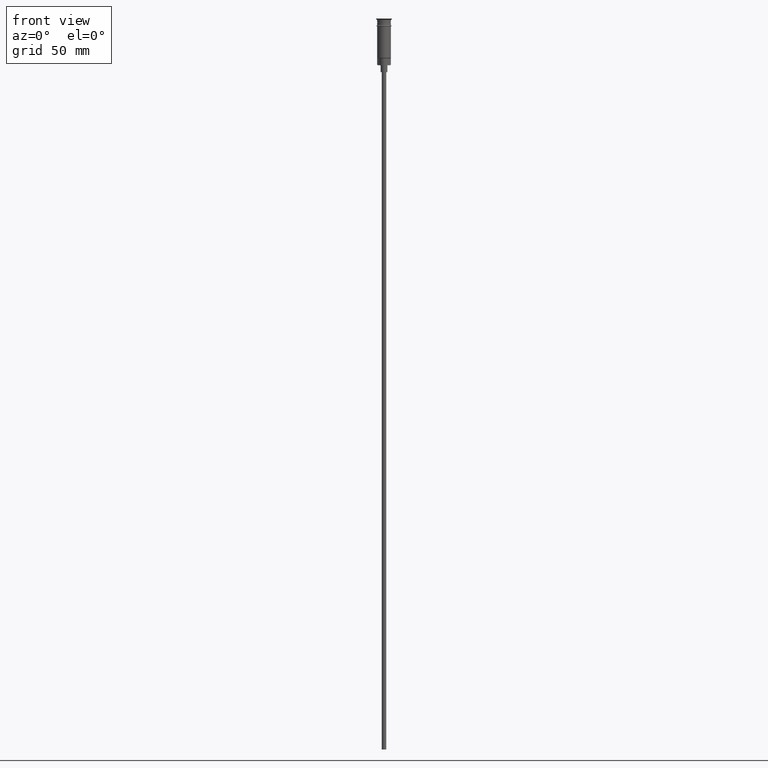
[diagram: clean part render]
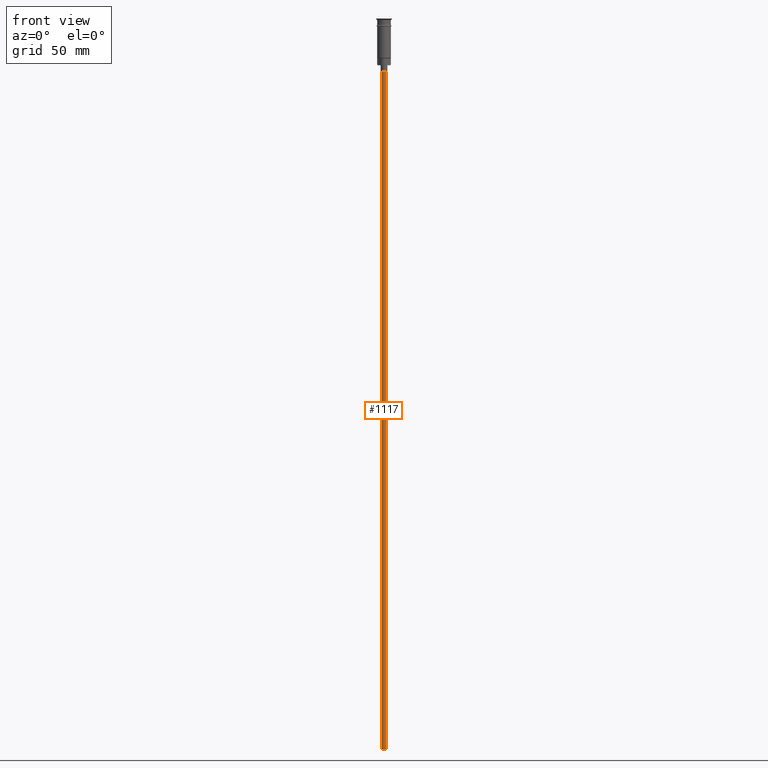
[diagram: same view with one face highlighted and labeled with its STEP entity id]
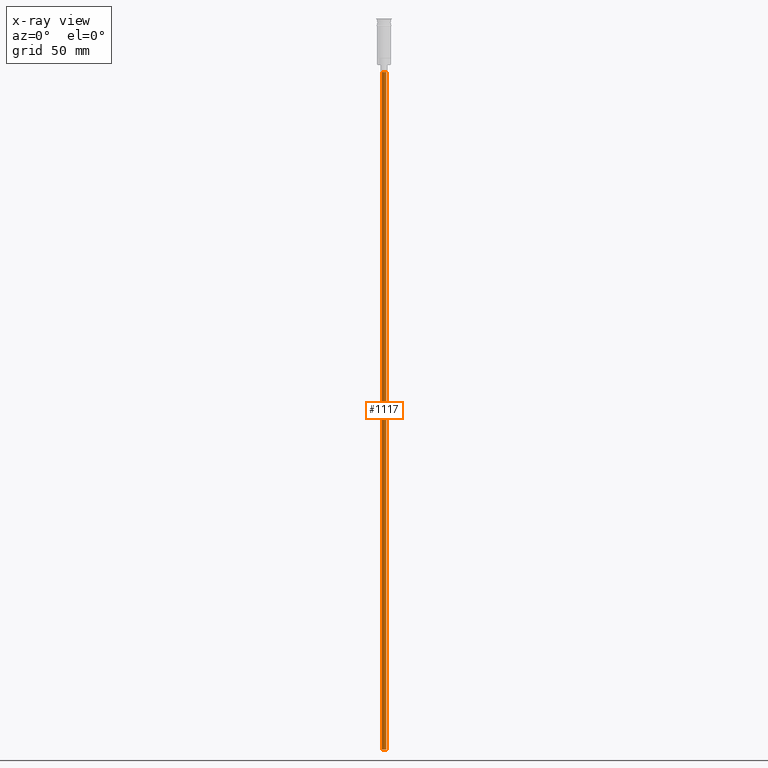
[diagram: x-ray of the same camera — body ghosted, the highlighted face saturated]
A machine part, front view. The second image highlights one B-rep face of the part: STEP entity #1117.
The next image is the same camera in x-ray: the body ghosted, the highlighted face saturated — about 0% of this face is hidden behind the body in this view.
In plain terms, the highlighted cylindrical surface (edge-blend (fillet) strip) has radius 1 mm, axis along (-0, -0, 1).
Its self-contained STEP definition (entity closure, byte-faithful):
#36 = VERTEX_POINT ( 'NONE', #1243 ) ;
#94 = EDGE_CURVE ( 'NONE', #1200, #822, #900, .T. ) ;
#113 = ORIENTED_EDGE ( 'NONE', *, *, #487, .F. ) ;
#152 = DIRECTION ( 'NONE',  ( 1.000000000000000000, 0.000000000000000000, 0.000000000000000000 ) ) ;
#214 = CARTESIAN_POINT ( 'NONE',  ( -0.9999999999999997780, 1.224646799147352961E-16, -320.5000000000000000 ) ) ;
#218 = CIRCLE ( 'NONE', #1506, 0.9999999999999997780 ) ;
#220 = ORIENTED_EDGE ( 'NONE', *, *, #1182, .F. ) ;
#299 = CARTESIAN_POINT ( 'NONE',  ( 0.000000000000000000, 0.000000000000000000, -320.5000000000000000 ) ) ;
#328 = EDGE_LOOP ( 'NONE', ( #220, #113, #651, #1048 ) ) ;
#399 = EDGE_CURVE ( 'NONE', #822, #36, #218, .T. ) ;
#409 = CARTESIAN_POINT ( 'NONE',  ( 0.000000000000000000, 0.000000000000000000, -23.50000000000000000 ) ) ;
#420 = DIRECTION ( 'NONE',  ( -0.000000000000000000, -0.000000000000000000, 1.000000000000000000 ) ) ;
#457 = CARTESIAN_POINT ( 'NONE',  ( 0.9999999999999997780, 0.000000000000000000, -320.5000000000000000 ) ) ;
#487 = EDGE_CURVE ( 'NONE', #1200, #534, #961, .T. ) ;
#516 = CARTESIAN_POINT ( 'NONE',  ( 0.9999999999999997780, 0.000000000000000000, -320.5000000000000000 ) ) ;
#534 = VERTEX_POINT ( 'NONE', #1242 ) ;
#651 = ORIENTED_EDGE ( 'NONE', *, *, #94, .T. ) ;
#696 = VECTOR ( 'NONE', #836, 1000.000000000000000 ) ;
#698 = CARTESIAN_POINT ( 'NONE',  ( 0.9999999999999997780, 0.000000000000000000, -23.50000000000000000 ) ) ;
#822 = VERTEX_POINT ( 'NONE', #698 ) ;
#836 = DIRECTION ( 'NONE',  ( -0.000000000000000000, -0.000000000000000000, 1.000000000000000000 ) ) ;
#864 = CARTESIAN_POINT ( 'NONE',  ( 0.000000000000000000, 0.000000000000000000, -320.5000000000000000 ) ) ;
#871 = DIRECTION ( 'NONE',  ( -0.000000000000000000, -0.000000000000000000, 1.000000000000000000 ) ) ;
#900 = LINE ( 'NONE', #516, #1526 ) ;
#915 = AXIS2_PLACEMENT_3D ( 'NONE', #864, #985, #1480 ) ;
#920 = AXIS2_PLACEMENT_3D ( 'NONE', #299, #420, #152 ) ;
#961 = CIRCLE ( 'NONE', #915, 0.9999999999999997780 ) ;
#985 = DIRECTION ( 'NONE',  ( 0.000000000000000000, 0.000000000000000000, -1.000000000000000000 ) ) ;
#1025 = FACE_OUTER_BOUND ( 'NONE', #328, .T. ) ;
#1048 = ORIENTED_EDGE ( 'NONE', *, *, #399, .T. ) ;
#1071 = LINE ( 'NONE', #214, #696 ) ;
#1117 = ADVANCED_FACE ( 'NONE', ( #1025 ), #1520, .T. ) ;
#1182 = EDGE_CURVE ( 'NONE', #534, #36, #1071, .T. ) ;
#1200 = VERTEX_POINT ( 'NONE', #457 ) ;
#1242 = CARTESIAN_POINT ( 'NONE',  ( -0.9999999999999997780, 1.224646799147352961E-16, -320.5000000000000000 ) ) ;
#1243 = CARTESIAN_POINT ( 'NONE',  ( -0.9999999999999997780, 1.224646799147352961E-16, -23.50000000000000000 ) ) ;
#1472 = DIRECTION ( 'NONE',  ( 0.000000000000000000, 0.000000000000000000, -1.000000000000000000 ) ) ;
#1480 = DIRECTION ( 'NONE',  ( -1.000000000000000000, 0.000000000000000000, 0.000000000000000000 ) ) ;
#1506 = AXIS2_PLACEMENT_3D ( 'NONE', #409, #1472, #1605 ) ;
#1520 = CYLINDRICAL_SURFACE ( 'NONE', #920, 0.9999999999999997780 ) ;
#1526 = VECTOR ( 'NONE', #871, 1000.000000000000000 ) ;
#1605 = DIRECTION ( 'NONE',  ( -1.000000000000000000, 0.000000000000000000, 0.000000000000000000 ) ) ;